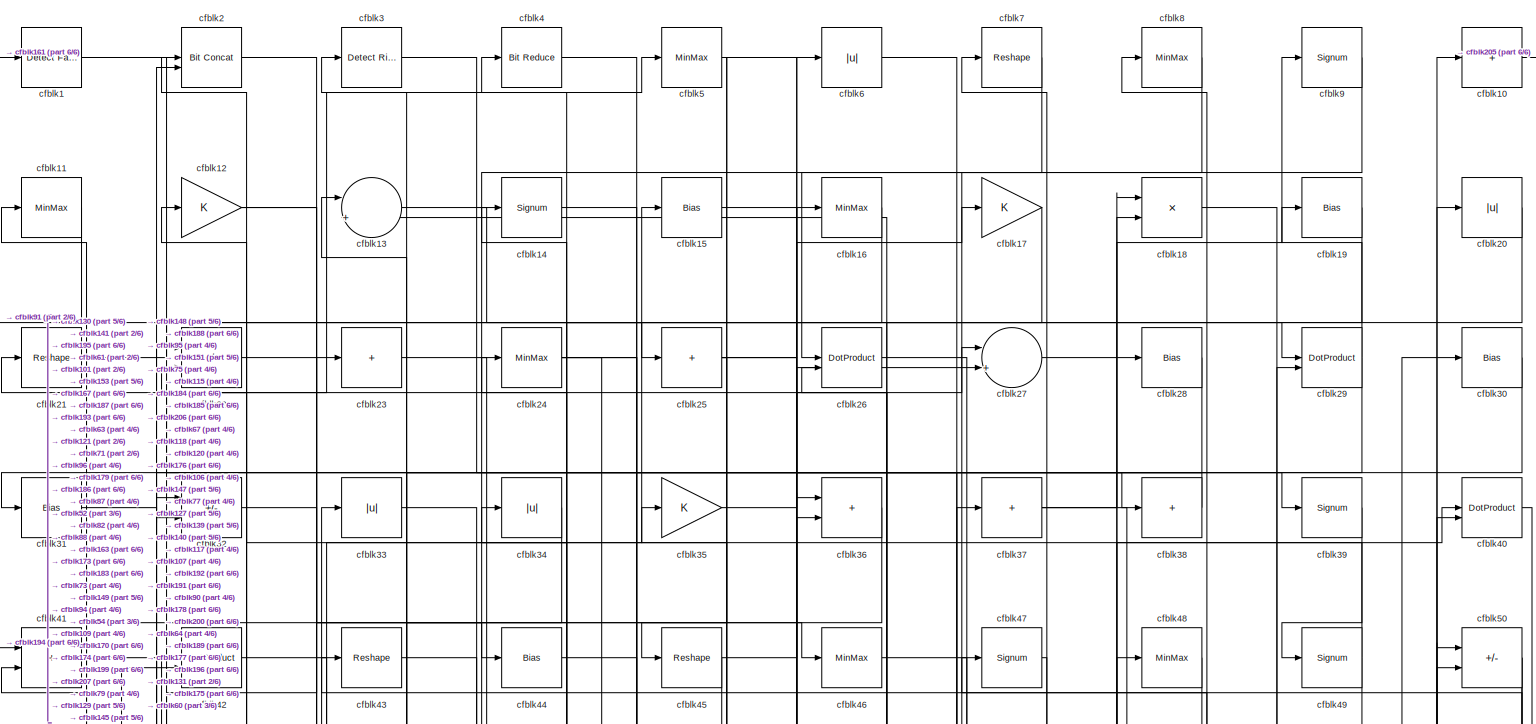
[diagram: root canvas - part 1/6, full width, top band]
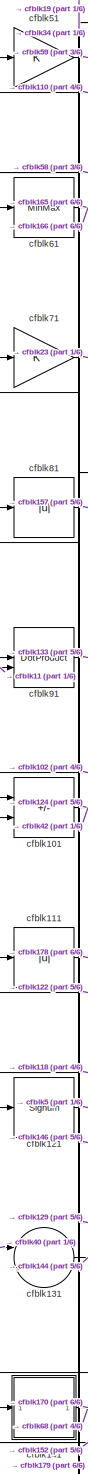
[diagram: root canvas - part 2/6, middle left region]
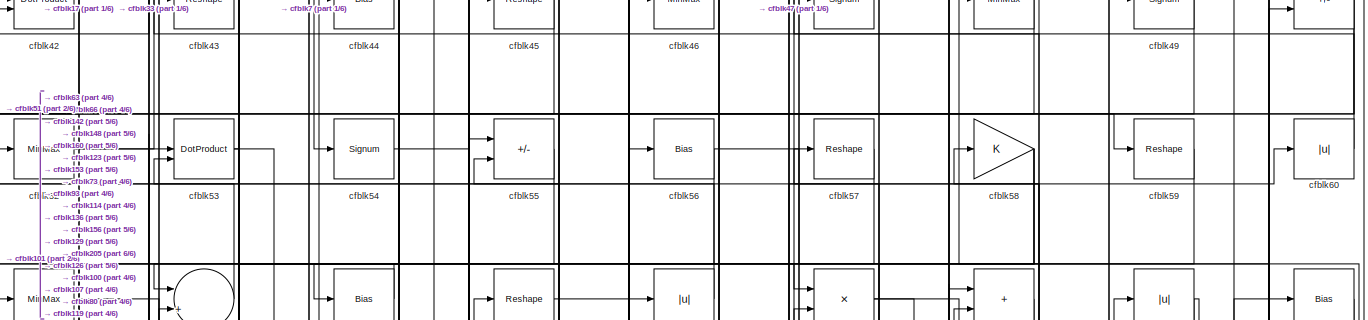
[diagram: root canvas - part 3/6, full width, top band]
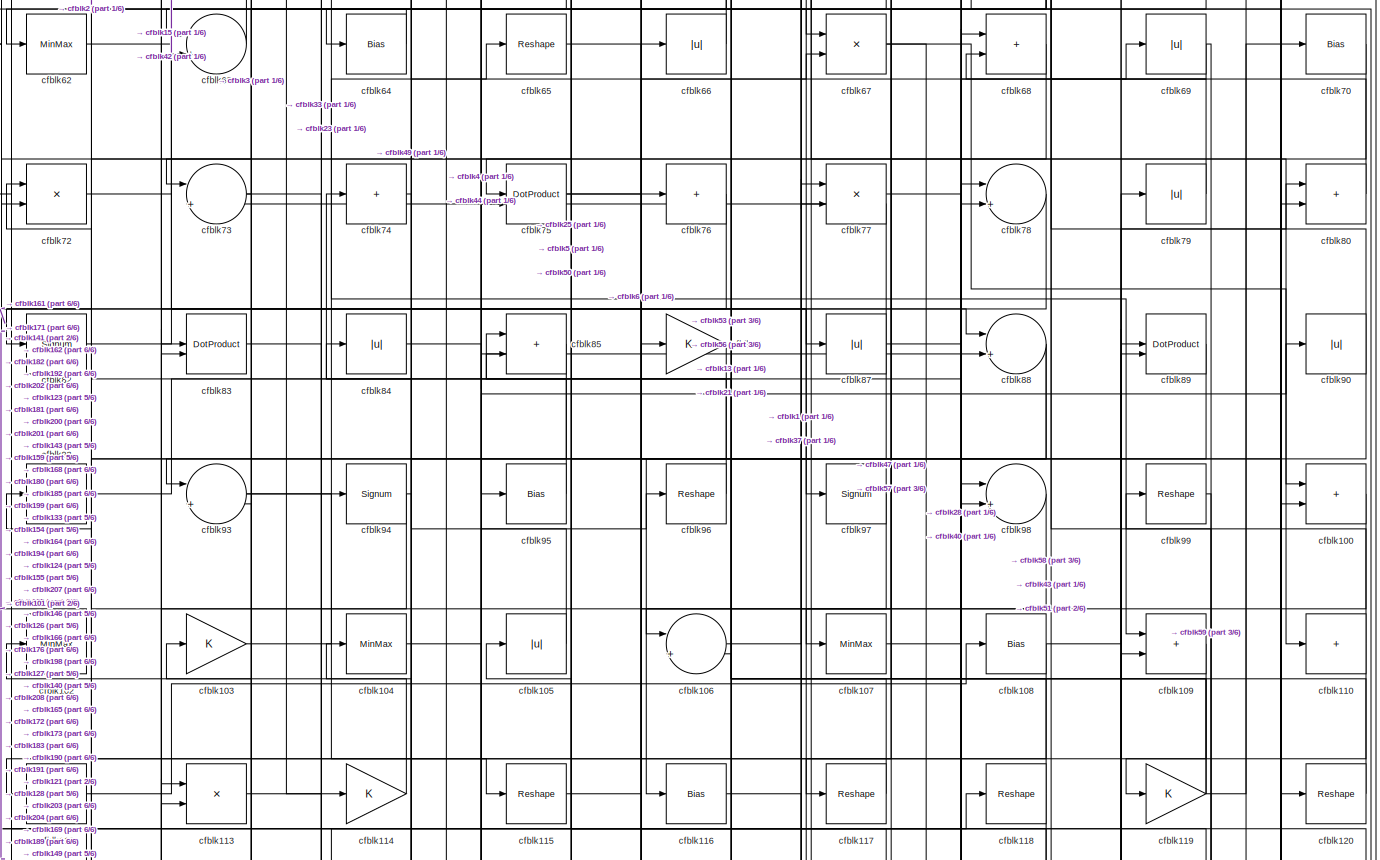
[diagram: root canvas - part 4/6, full width, middle band]
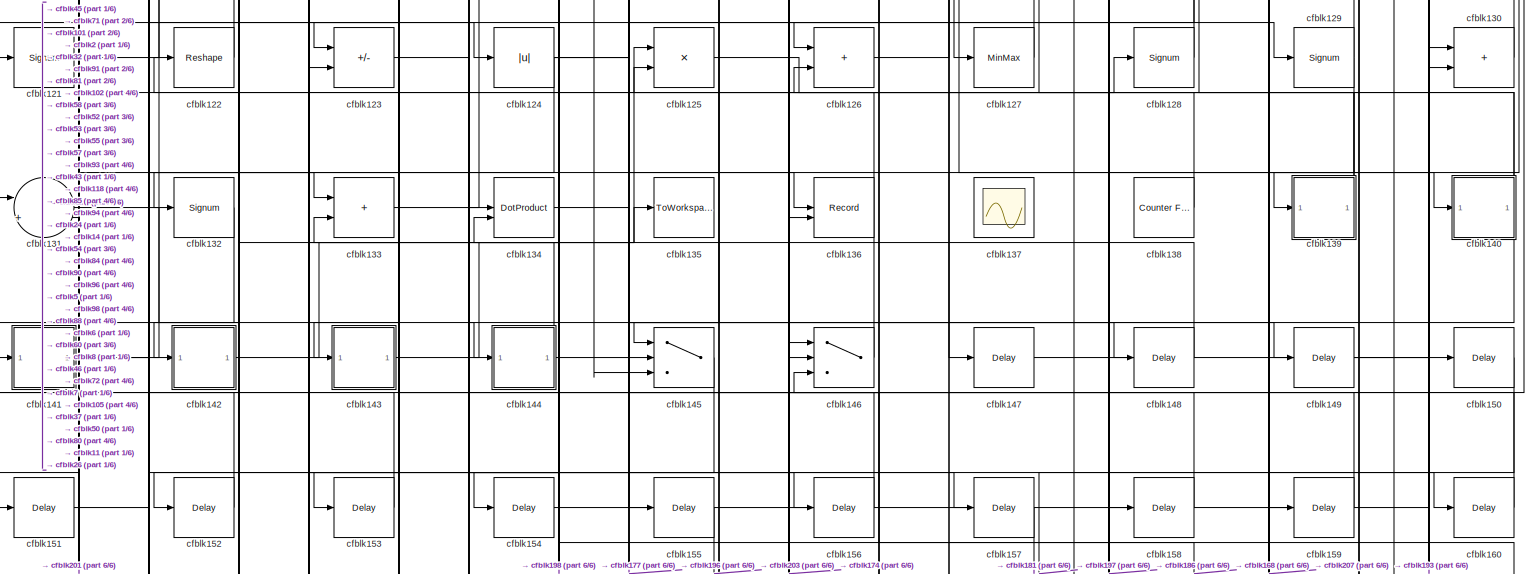
[diagram: root canvas - part 5/6, full width, bottom band]
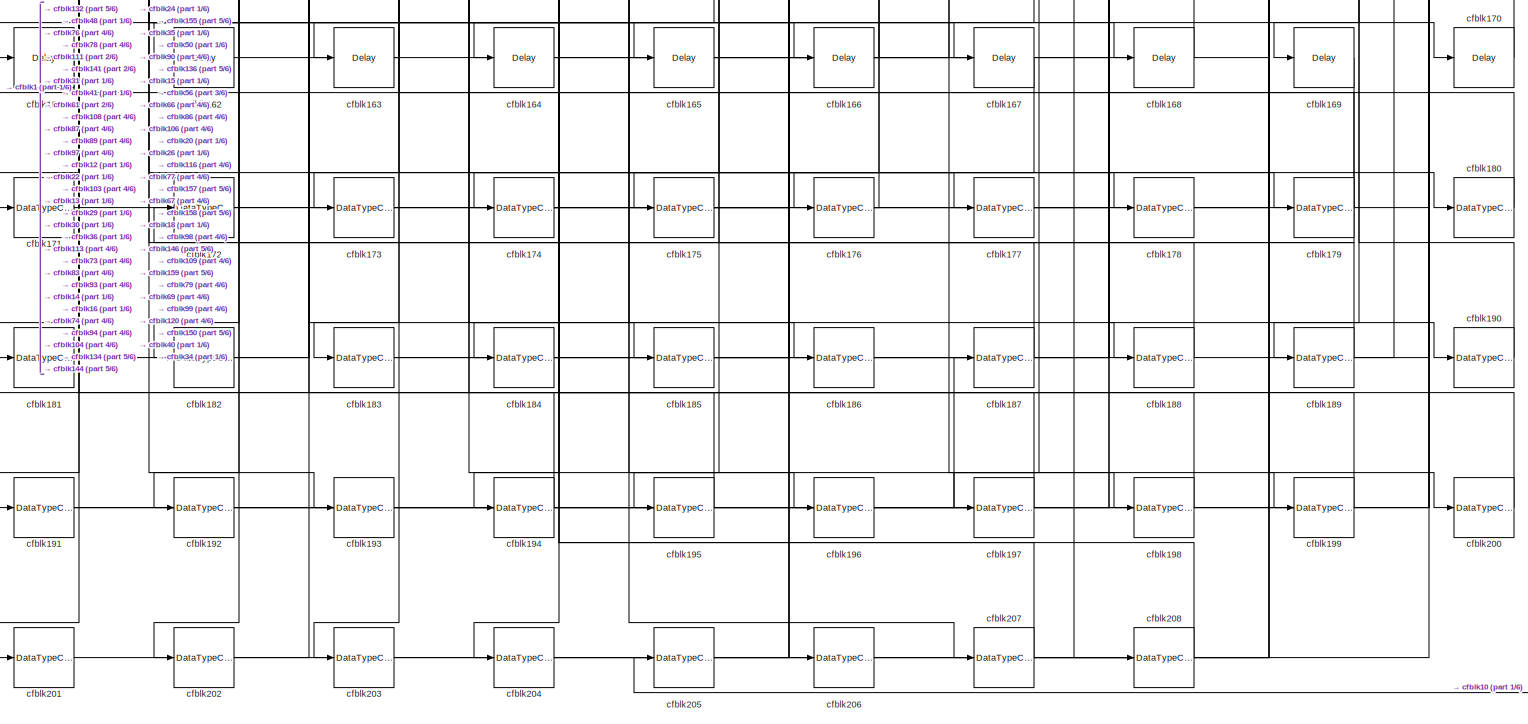
[diagram: root canvas - part 6/6, full width, bottom band]
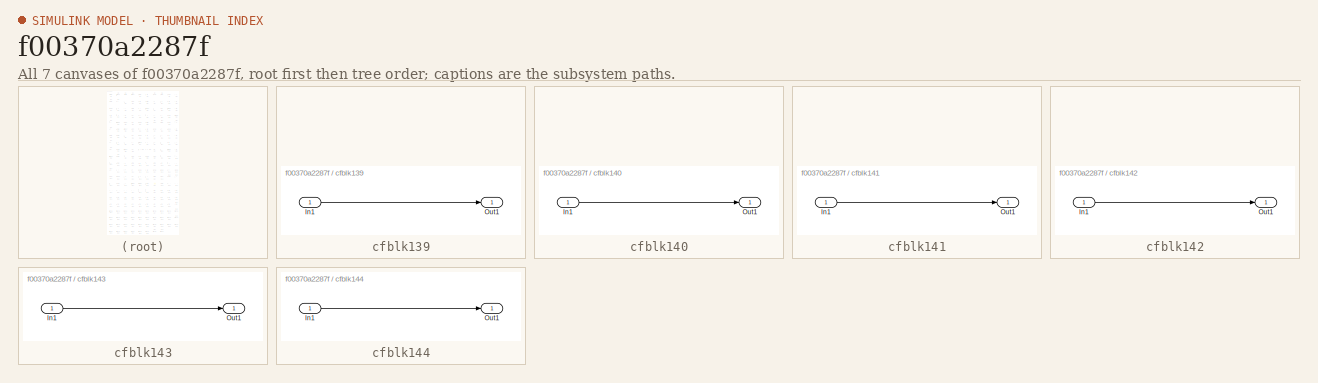
[diagram: thumbnail index - all 7 canvases of the model, root first then tree order]
MODEL slx_f00370a2287f
KIND model
CONFIG AbsTol = auto
CONFIG EnableMultiTasking = off
CONFIG FixedStep = auto
CONFIG MaxStep = auto
CONFIG MinStep = auto
CONFIG RelTol = 1e-3
CONFIG SampleTimeConstraint = Unconstrained
CONFIG SolverName = VariableStepAuto
CONFIG StartTime = 0.0
CONFIG StopTime = 10.0
BLOCK [Reference] cfblk1  REF=hdlsllib/Logic and Bit
Operations/Detect Fall
Nonpositive
  SourceBlock = hdlsllib/Logic and Bit\nOperations/Detect Fall\nNonpositive
  SourceType = Detect Fall Nonpositive
BLOCK [Sum] cfblk10
  IconShape = rectangular
  Inputs = +
BLOCK [Sum] cfblk100
  IconShape = rectangular
BLOCK [Sum] cfblk101
  IconShape = rectangular
  Inputs = +-
BLOCK [MinMax] cfblk102
BLOCK [Gain] cfblk103
BLOCK [MinMax] cfblk104
BLOCK [Abs] cfblk105
  SaturateOnIntegerOverflow = off
BLOCK [Sum] cfblk106
  Inputs = |++
BLOCK [MinMax] cfblk107
BLOCK [Bias] cfblk108
  Bias = 0.0
  SaturateOnIntegerOverflow = off
BLOCK [Sum] cfblk109
  IconShape = rectangular
BLOCK [MinMax] cfblk11
BLOCK [Sum] cfblk110
  IconShape = rectangular
  Inputs = +
BLOCK [Abs] cfblk111
  SaturateOnIntegerOverflow = off
BLOCK [Sum] cfblk112
  IconShape = rectangular
  Inputs = +
BLOCK [Product] cfblk113
  Inputs = */
  RndMeth = Zero
  SaturateOnIntegerOverflow = on
BLOCK [Gain] cfblk114
BLOCK [Reshape] cfblk115
BLOCK [Bias] cfblk116
  Bias = 0.0
  SaturateOnIntegerOverflow = off
BLOCK [Reshape] cfblk117
BLOCK [Reshape] cfblk118
BLOCK [Gain] cfblk119
BLOCK [Gain] cfblk12
BLOCK [Reshape] cfblk120
BLOCK [Signum] cfblk121
BLOCK [Reshape] cfblk122
BLOCK [Sum] cfblk123
  IconShape = rectangular
  Inputs = +-
BLOCK [Abs] cfblk124
  SaturateOnIntegerOverflow = off
BLOCK [Product] cfblk125
  Inputs = */
  RndMeth = Zero
  SaturateOnIntegerOverflow = on
BLOCK [Sum] cfblk126
  IconShape = rectangular
BLOCK [MinMax] cfblk127
BLOCK [Signum] cfblk128
BLOCK [Signum] cfblk129
BLOCK [Sum] cfblk13
  Inputs = |++
BLOCK [Sum] cfblk130
  IconShape = rectangular
BLOCK [Sum] cfblk131
  Inputs = |++
BLOCK [Signum] cfblk132
BLOCK [Sum] cfblk133
  IconShape = rectangular
BLOCK [DotProduct] cfblk134
  OutDataTypeStr = Inherit: Inherit via internal rule
BLOCK [ToWorkspace] cfblk135
  MaxDataPoints = inf
  SampleTime = -1
  SaveFormat = Timeseries
  VariableName = simout
BLOCK [Record] cfblk136
  CompatibilityTag = XY
  FileSettingsInternal = {"entries":[{"content":{"excelSettings":{"content":{},"type":"Streamout.ExcelSettings"}},"type":"Streamout.FileSettingStorage","uuid":""}],"packageUris":["http:\/\/schema.mathworks.com\/mf0\/streamout_blocks\/R2020a"],"version":"1.0"}
  Layout = [1 1]
  SignalsInternal = {"entries":[{"content":{"signals":[{"content":{"blockPath":[],"dimensions":[1],"domain":"","lineColor":"#a2142f","plots":[1],"port":1,"signalID":1211,"signalName":"XY Graph:1"},"type":"RecordBlkView.Signal","uuid":""},{"content":{"blockPath":[],"dimensions":[1],"domain":"","lineColor":"#139fff","plots":[1],"port":2,"signalID":1214,"signalName":"XY Graph:2"},"type":"RecordBlkView.Signal","uuid":""}...<+146ch>
  VisualizationBindings = {"xyplotplugin":{"info":[{"series":[{"bindingParametersList":[{"parameter":"X-Axis","signalID":1211,"signalName":"XY Graph:1"},{"parameter":"Y-Axis","signalID":1214,"signalName":"XY Graph:2"}],"seriesID":2209}],"subplotID":1}]}}
  st = -1
BLOCK [Scope] cfblk137
  Floating = on
  NumInputPorts = 1
  ScopeSpecificationString = Simulink.scopes.TimeScopeBlockCfg('CurrentConfiguration', extmgr.ConfigurationSet(extmgr.Configuration('Core','General UI',true,'FigureColor',[0.156862745098039 0.156862745098039 0.156862745098039]),extmgr.Configuration('Core','Source UI',true),extmgr.Configuration('Sources','WiredSimulink',true,'DataLoggingVariableName','ScopeData1','DataLoggingSaveFormat','StructureWithTime','DataLoggingLimitDat...<+2713ch>
BLOCK [Reference] cfblk138  REF=hdlsllib/Sources/Counter
Free-Running
  SourceBlock = hdlsllib/Sources/Counter\nFree-Running
  SourceType = Counter Free-Running
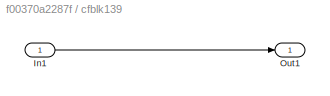
BLOCK [SubSystem] cfblk139
  LibrarySourceBlock = hdlsllib/Ports &\nSubsystems/Subsystem
BLOCK [Inport] cfblk139/In1
BLOCK [Outport] cfblk139/Out1
BLOCK [Signum] cfblk14
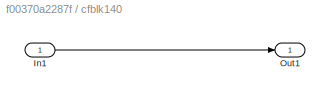
BLOCK [SubSystem] cfblk140
  LibrarySourceBlock = hdlsllib/Ports &\nSubsystems/Subsystem
BLOCK [Inport] cfblk140/In1
BLOCK [Outport] cfblk140/Out1
BLOCK [SubSystem] cfblk141
  LibrarySourceBlock = hdlsllib/Ports &\nSubsystems/Subsystem
BLOCK [Inport] cfblk141/In1
BLOCK [Outport] cfblk141/Out1
BLOCK [SubSystem] cfblk142
  LibrarySourceBlock = hdlsllib/Ports &\nSubsystems/Subsystem
BLOCK [Inport] cfblk142/In1
BLOCK [Outport] cfblk142/Out1
BLOCK [SubSystem] cfblk143
  LibrarySourceBlock = hdlsllib/Ports &\nSubsystems/Subsystem
BLOCK [Inport] cfblk143/In1
BLOCK [Outport] cfblk143/Out1
BLOCK [SubSystem] cfblk144
  LibrarySourceBlock = hdlsllib/Ports &\nSubsystems/Subsystem
BLOCK [Inport] cfblk144/In1
BLOCK [Outport] cfblk144/Out1
BLOCK [Switch] cfblk145
  InputSameDT = off
  SaturateOnIntegerOverflow = off
BLOCK [Switch] cfblk146
  InputSameDT = off
  SaturateOnIntegerOverflow = off
BLOCK [Delay] cfblk147
  InputPortMap = u0
  SampleTime = 1
BLOCK [Delay] cfblk148
  InputPortMap = u0
  SampleTime = 1
BLOCK [Delay] cfblk149
  InputPortMap = u0
  SampleTime = 1
BLOCK [Bias] cfblk15
  Bias = 0.0
  SaturateOnIntegerOverflow = off
BLOCK [Delay] cfblk150
  InputPortMap = u0
  SampleTime = 1
BLOCK [Delay] cfblk151
  InputPortMap = u0
  SampleTime = 1
BLOCK [Delay] cfblk152
  InputPortMap = u0
  SampleTime = 1
BLOCK [Delay] cfblk153
  InputPortMap = u0
  SampleTime = 1
BLOCK [Delay] cfblk154
  InputPortMap = u0
  SampleTime = 1
BLOCK [Delay] cfblk155
  InputPortMap = u0
  SampleTime = 1
BLOCK [Delay] cfblk156
  InputPortMap = u0
  SampleTime = 1
BLOCK [Delay] cfblk157
  InputPortMap = u0
  SampleTime = 1
BLOCK [Delay] cfblk158
  InputPortMap = u0
  SampleTime = 1
BLOCK [Delay] cfblk159
  InputPortMap = u0
  SampleTime = 1
BLOCK [MinMax] cfblk16
BLOCK [Delay] cfblk160
  InputPortMap = u0
  SampleTime = 1
BLOCK [Delay] cfblk161
  InputPortMap = u0
  SampleTime = 1
BLOCK [Delay] cfblk162
  InputPortMap = u0
  SampleTime = 1
BLOCK [Delay] cfblk163
  InputPortMap = u0
  SampleTime = 1
BLOCK [Delay] cfblk164
  InputPortMap = u0
  SampleTime = 1
BLOCK [Delay] cfblk165
  InputPortMap = u0
  SampleTime = 1
BLOCK [Delay] cfblk166
  InputPortMap = u0
  SampleTime = 1
BLOCK [Delay] cfblk167
  InputPortMap = u0
  SampleTime = 1
BLOCK [Delay] cfblk168
  InputPortMap = u0
  SampleTime = 1
BLOCK [Delay] cfblk169
  InputPortMap = u0
  SampleTime = 1
BLOCK [Gain] cfblk17
BLOCK [Delay] cfblk170
  InputPortMap = u0
  SampleTime = 1
BLOCK [DataTypeConversion] cfblk171
  OutDataTypeStr = uint8
  RndMeth = Floor
  SaturateOnIntegerOverflow = off
BLOCK [DataTypeConversion] cfblk172
  OutDataTypeStr = uint8
  RndMeth = Floor
  SaturateOnIntegerOverflow = off
BLOCK [DataTypeConversion] cfblk173
  OutDataTypeStr = uint8
  RndMeth = Floor
  SaturateOnIntegerOverflow = off
BLOCK [DataTypeConversion] cfblk174
  RndMeth = Floor
  SaturateOnIntegerOverflow = off
BLOCK [DataTypeConversion] cfblk175
  OutDataTypeStr = uint8
  RndMeth = Floor
  SaturateOnIntegerOverflow = off
BLOCK [DataTypeConversion] cfblk176
  RndMeth = Floor
  SaturateOnIntegerOverflow = off
BLOCK [DataTypeConversion] cfblk177
  OutDataTypeStr = uint8
  RndMeth = Floor
  SaturateOnIntegerOverflow = off
BLOCK [DataTypeConversion] cfblk178
  OutDataTypeStr = uint8
  RndMeth = Floor
  SaturateOnIntegerOverflow = off
BLOCK [DataTypeConversion] cfblk179
  OutDataTypeStr = uint8
  RndMeth = Floor
  SaturateOnIntegerOverflow = off
BLOCK [Product] cfblk18
  Inputs = */
  RndMeth = Zero
  SaturateOnIntegerOverflow = on
BLOCK [DataTypeConversion] cfblk180
  OutDataTypeStr = uint8
  RndMeth = Floor
  SaturateOnIntegerOverflow = off
BLOCK [DataTypeConversion] cfblk181
  OutDataTypeStr = uint8
  RndMeth = Floor
  SaturateOnIntegerOverflow = off
BLOCK [DataTypeConversion] cfblk182
  OutDataTypeStr = uint8
  RndMeth = Floor
  SaturateOnIntegerOverflow = off
BLOCK [DataTypeConversion] cfblk183
  RndMeth = Floor
  SaturateOnIntegerOverflow = off
BLOCK [DataTypeConversion] cfblk184
  OutDataTypeStr = uint8
  RndMeth = Floor
  SaturateOnIntegerOverflow = off
BLOCK [DataTypeConversion] cfblk185
  OutDataTypeStr = uint8
  RndMeth = Floor
  SaturateOnIntegerOverflow = off
BLOCK [DataTypeConversion] cfblk186
  OutDataTypeStr = uint8
  RndMeth = Floor
  SaturateOnIntegerOverflow = off
BLOCK [DataTypeConversion] cfblk187
  OutDataTypeStr = uint8
  RndMeth = Floor
  SaturateOnIntegerOverflow = off
BLOCK [DataTypeConversion] cfblk188
  OutDataTypeStr = uint8
  RndMeth = Floor
  SaturateOnIntegerOverflow = off
BLOCK [DataTypeConversion] cfblk189
  RndMeth = Floor
  SaturateOnIntegerOverflow = off
BLOCK [Bias] cfblk19
  Bias = 0.0
  SaturateOnIntegerOverflow = off
BLOCK [DataTypeConversion] cfblk190
  OutDataTypeStr = uint8
  RndMeth = Floor
  SaturateOnIntegerOverflow = off
BLOCK [DataTypeConversion] cfblk191
  RndMeth = Floor
  SaturateOnIntegerOverflow = off
BLOCK [DataTypeConversion] cfblk192
  OutDataTypeStr = uint8
  RndMeth = Floor
  SaturateOnIntegerOverflow = off
BLOCK [DataTypeConversion] cfblk193
  OutDataTypeStr = uint8
  RndMeth = Floor
  SaturateOnIntegerOverflow = off
BLOCK [DataTypeConversion] cfblk194
  OutDataTypeStr = uint8
  RndMeth = Floor
  SaturateOnIntegerOverflow = off
BLOCK [DataTypeConversion] cfblk195
  OutDataTypeStr = uint8
  RndMeth = Floor
  SaturateOnIntegerOverflow = off
BLOCK [DataTypeConversion] cfblk196
  OutDataTypeStr = uint8
  RndMeth = Floor
  SaturateOnIntegerOverflow = off
BLOCK [DataTypeConversion] cfblk197
  OutDataTypeStr = uint8
  RndMeth = Floor
  SaturateOnIntegerOverflow = off
BLOCK [DataTypeConversion] cfblk198
  OutDataTypeStr = uint8
  RndMeth = Floor
  SaturateOnIntegerOverflow = off
BLOCK [DataTypeConversion] cfblk199
  OutDataTypeStr = uint8
  RndMeth = Floor
  SaturateOnIntegerOverflow = off
BLOCK [Reference] cfblk2  REF=hdlsllib/Logic and Bit
Operations/Bit Concat
  SourceBlock = hdlsllib/Logic and Bit\nOperations/Bit Concat
  SourceType = Bit Concat
BLOCK [Abs] cfblk20
  SaturateOnIntegerOverflow = off
BLOCK [DataTypeConversion] cfblk200
  OutDataTypeStr = uint8
  RndMeth = Floor
  SaturateOnIntegerOverflow = off
BLOCK [DataTypeConversion] cfblk201
  OutDataTypeStr = uint8
  RndMeth = Floor
  SaturateOnIntegerOverflow = off
BLOCK [DataTypeConversion] cfblk202
  OutDataTypeStr = uint8
  RndMeth = Floor
  SaturateOnIntegerOverflow = off
BLOCK [DataTypeConversion] cfblk203
  OutDataTypeStr = uint8
  RndMeth = Floor
  SaturateOnIntegerOverflow = off
BLOCK [DataTypeConversion] cfblk204
  OutDataTypeStr = uint8
  RndMeth = Floor
  SaturateOnIntegerOverflow = off
BLOCK [DataTypeConversion] cfblk205
  OutDataTypeStr = uint8
  RndMeth = Floor
  SaturateOnIntegerOverflow = off
BLOCK [DataTypeConversion] cfblk206
  OutDataTypeStr = uint8
  RndMeth = Floor
  SaturateOnIntegerOverflow = off
BLOCK [DataTypeConversion] cfblk207
  RndMeth = Floor
  SaturateOnIntegerOverflow = off
BLOCK [DataTypeConversion] cfblk208
  OutDataTypeStr = uint8
  RndMeth = Floor
  SaturateOnIntegerOverflow = off
BLOCK [Reshape] cfblk21
BLOCK [Sum] cfblk22
  IconShape = rectangular
  Inputs = +-
BLOCK [Sum] cfblk23
  IconShape = rectangular
  Inputs = +
BLOCK [MinMax] cfblk24
BLOCK [Sum] cfblk25
  IconShape = rectangular
  Inputs = +
BLOCK [DotProduct] cfblk26
  OutDataTypeStr = Inherit: Inherit via internal rule
BLOCK [Sum] cfblk27
  Inputs = |++
BLOCK [Bias] cfblk28
  Bias = 0.0
  SaturateOnIntegerOverflow = off
BLOCK [DotProduct] cfblk29
  OutDataTypeStr = Inherit: Inherit via internal rule
BLOCK [Reference] cfblk3  REF=hdlsllib/Logic and Bit
Operations/Detect Rise
Positive
  SourceBlock = hdlsllib/Logic and Bit\nOperations/Detect Rise\nPositive
  SourceType = Detect Rise Positive
BLOCK [Bias] cfblk30
  Bias = 0.0
  SaturateOnIntegerOverflow = off
BLOCK [Bias] cfblk31
  Bias = 0.0
  SaturateOnIntegerOverflow = off
BLOCK [Sum] cfblk32
  IconShape = rectangular
  Inputs = +-
BLOCK [Abs] cfblk33
  SaturateOnIntegerOverflow = off
BLOCK [Abs] cfblk34
  SaturateOnIntegerOverflow = off
BLOCK [Gain] cfblk35
BLOCK [Sum] cfblk36
  IconShape = rectangular
BLOCK [Sum] cfblk37
  IconShape = rectangular
  Inputs = +
BLOCK [Sum] cfblk38
  IconShape = rectangular
  Inputs = +
BLOCK [Signum] cfblk39
BLOCK [Reference] cfblk4  REF=hdlsllib/Logic and Bit
Operations/Bit Reduce
  SourceBlock = hdlsllib/Logic and Bit\nOperations/Bit Reduce
  SourceType = Bit Reduce
BLOCK [DotProduct] cfblk40
  OutDataTypeStr = Inherit: Inherit via internal rule
BLOCK [Sum] cfblk41
  IconShape = rectangular
BLOCK [DotProduct] cfblk42
  OutDataTypeStr = Inherit: Inherit via internal rule
BLOCK [Reshape] cfblk43
BLOCK [Bias] cfblk44
  Bias = 0.0
  SaturateOnIntegerOverflow = off
BLOCK [Reshape] cfblk45
BLOCK [MinMax] cfblk46
BLOCK [Signum] cfblk47
BLOCK [MinMax] cfblk48
BLOCK [Signum] cfblk49
BLOCK [MinMax] cfblk5
BLOCK [Sum] cfblk50
  IconShape = rectangular
  Inputs = +-
BLOCK [Gain] cfblk51
BLOCK [MinMax] cfblk52
BLOCK [DotProduct] cfblk53
  OutDataTypeStr = Inherit: Inherit via internal rule
BLOCK [Signum] cfblk54
BLOCK [Sum] cfblk55
  IconShape = rectangular
  Inputs = +-
BLOCK [Bias] cfblk56
  Bias = 0.0
  SaturateOnIntegerOverflow = off
BLOCK [Reshape] cfblk57
BLOCK [Gain] cfblk58
BLOCK [Reshape] cfblk59
BLOCK [Abs] cfblk6
  SaturateOnIntegerOverflow = off
BLOCK [Abs] cfblk60
  SaturateOnIntegerOverflow = off
BLOCK [MinMax] cfblk61
BLOCK [MinMax] cfblk62
BLOCK [Sum] cfblk63
  Inputs = |++
BLOCK [Bias] cfblk64
  Bias = 0.0
  SaturateOnIntegerOverflow = off
BLOCK [Reshape] cfblk65
BLOCK [Abs] cfblk66
  SaturateOnIntegerOverflow = off
BLOCK [Product] cfblk67
  Inputs = */
  RndMeth = Zero
  SaturateOnIntegerOverflow = on
BLOCK [Sum] cfblk68
  IconShape = rectangular
BLOCK [Abs] cfblk69
  SaturateOnIntegerOverflow = off
BLOCK [Reshape] cfblk7
BLOCK [Bias] cfblk70
  Bias = 0.0
  SaturateOnIntegerOverflow = off
BLOCK [Gain] cfblk71
BLOCK [Product] cfblk72
  Inputs = */
  RndMeth = Zero
  SaturateOnIntegerOverflow = on
BLOCK [Sum] cfblk73
  Inputs = |++
BLOCK [Sum] cfblk74
  IconShape = rectangular
  Inputs = +
BLOCK [DotProduct] cfblk75
  OutDataTypeStr = Inherit: Inherit via internal rule
BLOCK [Sum] cfblk76
  IconShape = rectangular
  Inputs = +
BLOCK [Product] cfblk77
  Inputs = */
  RndMeth = Zero
  SaturateOnIntegerOverflow = on
BLOCK [Sum] cfblk78
  Inputs = |++
BLOCK [Abs] cfblk79
  SaturateOnIntegerOverflow = off
BLOCK [MinMax] cfblk8
BLOCK [Sum] cfblk80
  IconShape = rectangular
BLOCK [Abs] cfblk81
  SaturateOnIntegerOverflow = off
BLOCK [Signum] cfblk82
BLOCK [DotProduct] cfblk83
  OutDataTypeStr = Inherit: Inherit via internal rule
BLOCK [Abs] cfblk84
  SaturateOnIntegerOverflow = off
BLOCK [Sum] cfblk85
  IconShape = rectangular
BLOCK [Gain] cfblk86
BLOCK [Abs] cfblk87
  SaturateOnIntegerOverflow = off
BLOCK [Sum] cfblk88
  Inputs = |++
BLOCK [DotProduct] cfblk89
  OutDataTypeStr = Inherit: Inherit via internal rule
BLOCK [Signum] cfblk9
BLOCK [Abs] cfblk90
  SaturateOnIntegerOverflow = off
BLOCK [DotProduct] cfblk91
  OutDataTypeStr = Inherit: Inherit via internal rule
BLOCK [MinMax] cfblk92
BLOCK [Sum] cfblk93
  Inputs = |++
BLOCK [Signum] cfblk94
BLOCK [Bias] cfblk95
  Bias = 0.0
  SaturateOnIntegerOverflow = off
BLOCK [Reshape] cfblk96
BLOCK [Signum] cfblk97
BLOCK [Sum] cfblk98
  Inputs = |++
BLOCK [Reshape] cfblk99
LINE cfblk100:1 -> cfblk106:1
NET cfblk101:1 -> cfblk124:1, cfblk42:2
LINE cfblk102:1 -> cfblk101:1
LINE cfblk103:1 -> cfblk65:1
LINE cfblk104:1 -> cfblk207:1
LINE cfblk105:1 -> cfblk84:1
LINE cfblk106:1 -> cfblk37:1
LINE cfblk107:1 -> cfblk28:1
NET cfblk108:1 -> cfblk192:1, cfblk80:1
LINE cfblk109:1 -> cfblk112:1
LINE cfblk10:1 -> cfblk205:1
NET cfblk110:1 -> cfblk119:1, cfblk51:1
LINE cfblk111:1 -> cfblk178:1
LINE cfblk112:1 -> cfblk108:1
LINE cfblk113:1 -> cfblk180:1
LINE cfblk114:1 -> cfblk92:1
LINE cfblk115:1 -> cfblk6:1
LINE cfblk116:1 -> cfblk198:1
LINE cfblk117:1 -> cfblk85:1
NET cfblk118:1 -> cfblk121:1, cfblk13:2
NET cfblk119:1 -> cfblk57:1, cfblk70:1, cfblk85:2
LINE cfblk11:1 -> cfblk91:2
LINE cfblk120:1 -> cfblk21:1
LINE cfblk121:1 -> cfblk5:1
LINE cfblk122:1 -> cfblk81:1
LINE cfblk123:1 -> cfblk156:1
NET cfblk124:1 -> cfblk132:1, cfblk90:1, cfblk96:1
LINE cfblk125:1 -> cfblk128:1
LINE cfblk126:1 -> cfblk60:1
LINE cfblk127:1 -> cfblk72:1
LINE cfblk128:1 -> cfblk105:1
NET cfblk129:1 -> cfblk131:2, cfblk55:2
NET cfblk12:1 -> cfblk179:1, cfblk44:1
LINE cfblk130:1 -> cfblk11:1
LINE cfblk131:1 -> cfblk144:1
LINE cfblk132:1 -> cfblk201:1
LINE cfblk133:1 -> cfblk118:1
LINE cfblk134:1 -> cfblk196:1
LINE cfblk138:1 -> cfblk125:2
LINE cfblk139/In1:1 -> cfblk139/Out1:1
NET cfblk139:1 -> cfblk126:2, cfblk8:1
LINE cfblk13:1 -> cfblk25:1
LINE cfblk140/In1:1 -> cfblk140/Out1:1
NET cfblk140:1 -> cfblk102:1, cfblk145:2, cfblk7:1
LINE cfblk141/In1:1 -> cfblk141/Out1:1
NET cfblk141:1 -> cfblk170:1, cfblk68:1
LINE cfblk142/In1:1 -> cfblk142/Out1:1
LINE cfblk142:1 -> cfblk135:1
LINE cfblk143/In1:1 -> cfblk143/Out1:1
LINE cfblk143:1 -> cfblk125:1
LINE cfblk144/In1:1 -> cfblk144/Out1:1
NET cfblk144:1 -> cfblk122:1, cfblk177:1
LINE cfblk145:1 -> cfblk152:1
LINE cfblk146:1 -> cfblk71:1
LINE cfblk147:1 -> cfblk50:1
LINE cfblk148:1 -> cfblk53:1
LINE cfblk149:1 -> cfblk80:2
LINE cfblk14:1 -> cfblk148:1
LINE cfblk150:1 -> cfblk197:1
LINE cfblk151:1 -> cfblk2:2
LINE cfblk152:1 -> cfblk91:1
LINE cfblk153:1 -> cfblk32:1
LINE cfblk154:1 -> cfblk130:1
LINE cfblk155:1 -> cfblk203:1
LINE cfblk156:1 -> cfblk55:1
LINE cfblk157:1 -> cfblk181:1
LINE cfblk158:1 -> cfblk146:1
LINE cfblk159:1 -> cfblk93:2
LINE cfblk15:1 -> cfblk206:1
LINE cfblk160:1 -> cfblk133:2
LINE cfblk161:1 -> cfblk1:1
LINE cfblk162:1 -> cfblk109:2
LINE cfblk163:1 -> cfblk13:1
LINE cfblk164:1 -> cfblk77:1
LINE cfblk165:1 -> cfblk98:2
LINE cfblk166:1 -> cfblk106:2
LINE cfblk167:1 -> cfblk184:1
LINE cfblk168:1 -> cfblk146:3
LINE cfblk169:1 -> cfblk172:1
LINE cfblk16:1 -> cfblk174:1
LINE cfblk170:1 -> cfblk34:1
LINE cfblk171:1 -> cfblk86:1
LINE cfblk172:1 -> cfblk78:1
LINE cfblk173:1 -> cfblk78:2
NET cfblk174:1 -> cfblk136:2, cfblk204:1
LINE cfblk175:1 -> cfblk16:1
NET cfblk176:1 -> cfblk26:2, cfblk79:1
LINE cfblk177:1 -> cfblk20:1
LINE cfblk178:1 -> cfblk29:2
LINE cfblk179:1 -> cfblk111:1
LINE cfblk17:1 -> cfblk52:1
LINE cfblk180:1 -> cfblk103:1
LINE cfblk181:1 -> cfblk113:1
LINE cfblk182:1 -> cfblk113:2
NET cfblk183:1 -> cfblk40:2, cfblk98:1
LINE cfblk184:1 -> cfblk36:1
LINE cfblk185:1 -> cfblk36:2
LINE cfblk186:1 -> cfblk158:1
LINE cfblk187:1 -> cfblk22:1
LINE cfblk188:1 -> cfblk22:2
NET cfblk189:1 -> cfblk30:1, cfblk35:1
LINE cfblk18:1 -> cfblk200:1
LINE cfblk190:1 -> cfblk99:1
NET cfblk191:1 -> cfblk120:1, cfblk187:1, cfblk18:2
LINE cfblk192:1 -> cfblk48:1
LINE cfblk193:1 -> cfblk150:1
LINE cfblk194:1 -> cfblk41:1
LINE cfblk195:1 -> cfblk41:2
LINE cfblk196:1 -> cfblk50:2
LINE cfblk197:1 -> cfblk134:1
LINE cfblk198:1 -> cfblk134:2
LINE cfblk199:1 -> cfblk14:1
LINE cfblk19:1 -> cfblk61:1
LINE cfblk1:1 -> cfblk77:2
LINE cfblk200:1 -> cfblk83:1
LINE cfblk201:1 -> cfblk83:2
LINE cfblk202:1 -> cfblk66:1
LINE cfblk203:1 -> cfblk89:1
LINE cfblk204:1 -> cfblk89:2
LINE cfblk205:1 -> cfblk56:1
LINE cfblk206:1 -> cfblk10:1
NET cfblk207:1 -> cfblk159:1, cfblk24:1
LINE cfblk208:1 -> cfblk104:1
LINE cfblk20:1 -> cfblk176:1
LINE cfblk21:1 -> cfblk29:1
LINE cfblk22:1 -> cfblk186:1
LINE cfblk23:1 -> cfblk109:1
NET cfblk24:1 -> cfblk129:1, cfblk145:3, cfblk188:1
NET cfblk25:1 -> cfblk17:1, cfblk39:1, cfblk75:1
LINE cfblk26:1 -> cfblk139:1
LINE cfblk27:1 -> cfblk18:1
LINE cfblk28:1 -> cfblk32:2
NET cfblk29:1 -> cfblk163:1, cfblk9:1
LINE cfblk2:1 -> cfblk87:1
LINE cfblk30:1 -> cfblk173:1
LINE cfblk31:1 -> cfblk167:1
LINE cfblk32:1 -> cfblk46:1
LINE cfblk33:1 -> cfblk94:1
LINE cfblk34:1 -> cfblk141:1
LINE cfblk35:1 -> cfblk27:1
LINE cfblk36:1 -> cfblk183:1
NET cfblk37:1 -> cfblk130:2, cfblk19:1
LINE cfblk38:1 -> cfblk31:1
LINE cfblk39:1 -> cfblk49:1
LINE cfblk3:1 -> cfblk38:1
LINE cfblk40:1 -> cfblk131:1
LINE cfblk41:1 -> cfblk193:1
LINE cfblk42:1 -> cfblk88:1
LINE cfblk43:1 -> cfblk149:1
LINE cfblk44:1 -> cfblk95:1
NET cfblk45:1 -> cfblk151:1, cfblk27:2
LINE cfblk46:1 -> cfblk140:1
LINE cfblk47:1 -> cfblk117:1
LINE cfblk48:1 -> cfblk191:1
NET cfblk49:1 -> cfblk12:1, cfblk64:1
LINE cfblk4:1 -> cfblk88:2
NET cfblk50:1 -> cfblk175:1, cfblk75:2
LINE cfblk51:1 -> cfblk59:1
NET cfblk52:1 -> cfblk160:1, cfblk33:1
NET cfblk53:1 -> cfblk114:1, cfblk93:1
LINE cfblk54:1 -> cfblk136:1
LINE cfblk55:1 -> cfblk123:1
NET cfblk56:1 -> cfblk100:1, cfblk73:1
LINE cfblk57:1 -> cfblk153:1
NET cfblk58:1 -> cfblk101:2, cfblk107:1, cfblk142:1
LINE cfblk59:1 -> cfblk63:1
NET cfblk5:1 -> cfblk145:1, cfblk45:1, cfblk67:1
LINE cfblk60:1 -> cfblk47:1
NET cfblk61:1 -> cfblk165:1, cfblk166:1
LINE cfblk62:1 -> cfblk97:1
LINE cfblk63:1 -> cfblk42:1
LINE cfblk64:1 -> cfblk62:1
LINE cfblk65:1 -> cfblk100:2
LINE cfblk66:1 -> cfblk53:2
NET cfblk67:1 -> cfblk110:1, cfblk208:1
LINE cfblk68:1 -> cfblk82:1
NET cfblk69:1 -> cfblk169:1, cfblk68:2
LINE cfblk6:1 -> cfblk147:1
LINE cfblk70:1 -> cfblk72:2
LINE cfblk71:1 -> cfblk23:1
LINE cfblk72:1 -> cfblk63:2
NET cfblk73:1 -> cfblk168:1, cfblk3:1
LINE cfblk74:1 -> cfblk164:1
NET cfblk75:1 -> cfblk67:2, cfblk76:1
LINE cfblk76:1 -> cfblk161:1
LINE cfblk77:1 -> cfblk190:1
LINE cfblk78:1 -> cfblk171:1
LINE cfblk79:1 -> cfblk4:1
LINE cfblk7:1 -> cfblk54:1
LINE cfblk80:1 -> cfblk58:1
LINE cfblk81:1 -> cfblk157:1
LINE cfblk82:1 -> cfblk15:1
LINE cfblk83:1 -> cfblk199:1
LINE cfblk84:1 -> cfblk155:1
LINE cfblk85:1 -> cfblk154:1
LINE cfblk86:1 -> cfblk116:1
NET cfblk87:1 -> cfblk182:1, cfblk40:1, cfblk73:2
NET cfblk88:1 -> cfblk126:1, cfblk143:1
LINE cfblk89:1 -> cfblk202:1
LINE cfblk8:1 -> cfblk127:1
NET cfblk90:1 -> cfblk195:1, cfblk43:1
LINE cfblk91:1 -> cfblk133:1
LINE cfblk92:1 -> cfblk69:1
NET cfblk93:1 -> cfblk115:1, cfblk185:1
NET cfblk94:1 -> cfblk123:2, cfblk194:1
LINE cfblk95:1 -> cfblk74:1
LINE cfblk96:1 -> cfblk2:1
LINE cfblk97:1 -> cfblk162:1
LINE cfblk98:1 -> cfblk146:2
LINE cfblk99:1 -> cfblk189:1
LINE cfblk9:1 -> cfblk26:1
note: NET lines group one-source signal fan-out (src -> all destinations, sorted); 1:1 wires keep LINE
